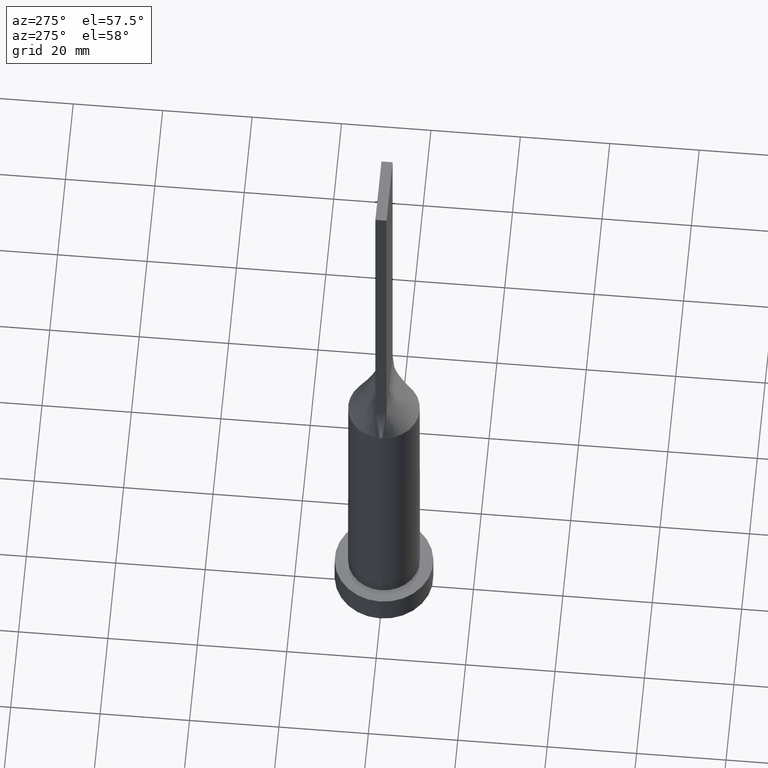
[diagram: clean part render]
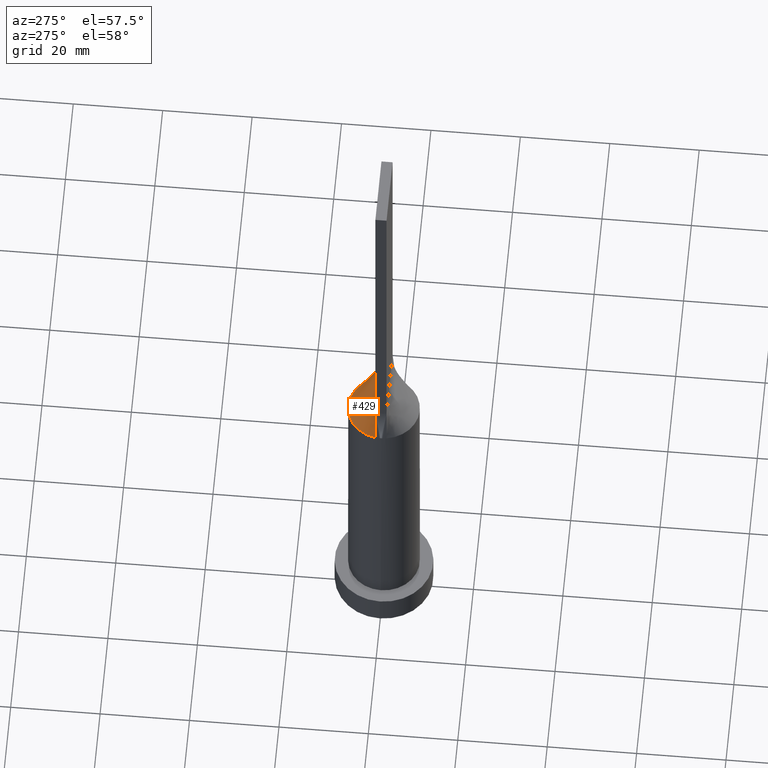
[diagram: same view with one face highlighted and labeled with its STEP entity id]
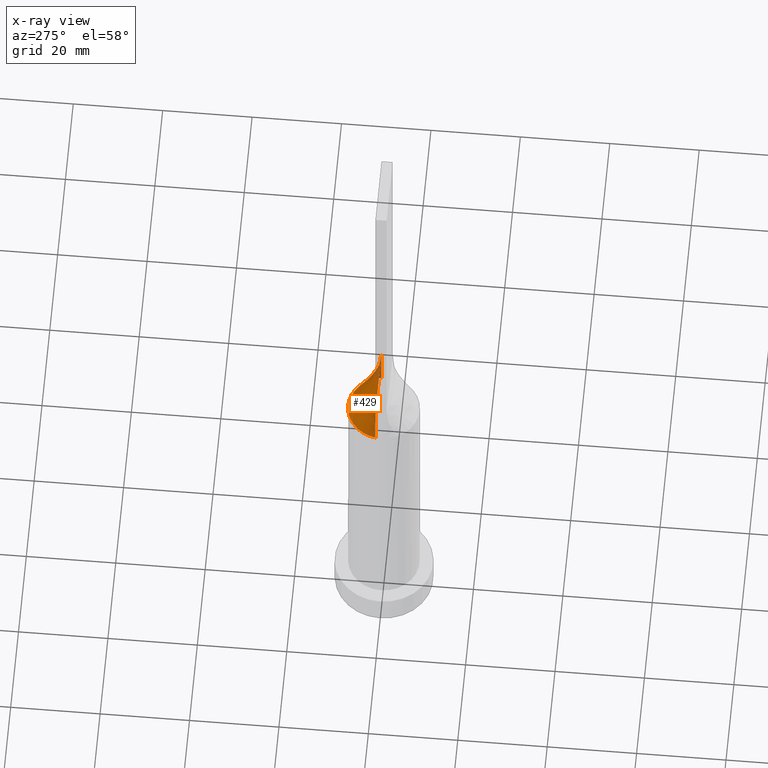
[diagram: x-ray of the same camera — body ghosted, the highlighted face saturated]
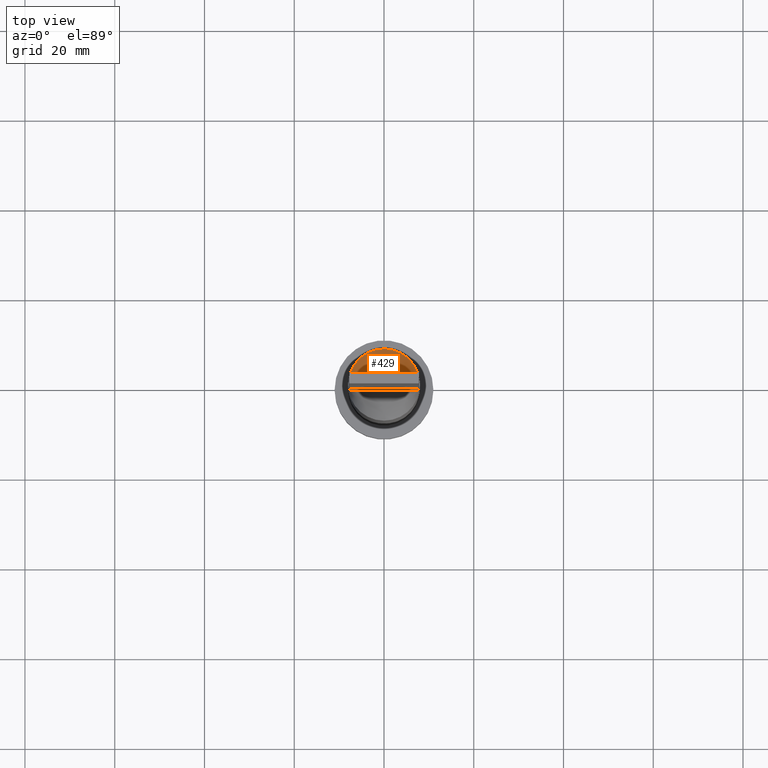
[diagram: same view with one face highlighted and labeled with its STEP entity id]
A machine part, auxiliary view. The second image highlights one B-rep face of the part: STEP entity #429.
The next image is the same camera in x-ray: the body ghosted, the highlighted face saturated — about 6% of this face is hidden behind the body in this view.
A second angle (top view) of the same face is appended — the face is thin or edge-on in the first view.
In plain terms, the highlighted face is a freeform B-spline surface patch.
Its self-contained STEP definition (entity closure, byte-faithful):
#4 = CARTESIAN_POINT ( 'NONE',  ( 0.5677556330368851434, 7.999999999999998224, 70.00000000000000000 ) ) ;
#12 = CARTESIAN_POINT ( 'NONE',  ( -1.135368687448994329, 7.938897956688654389, 70.00000000000002842 ) ) ;
#14 = CARTESIAN_POINT ( 'NONE',  ( -6.883287261198669960, 4.100742229440782260, 69.99999999999998579 ) ) ;
#17 = CARTESIAN_POINT ( 'NONE',  ( -6.100409024666552327, 5.197691498289451317, 70.00000000000000000 ) ) ;
#19 = CARTESIAN_POINT ( 'NONE',  ( 6.883287261198673512, 4.100742229440780484, 70.00000000000000000 ) ) ;
#22 = CARTESIAN_POINT ( 'NONE',  ( 4.217034177653714799, 6.817775467282659818, 70.00000000000001421 ) ) ;
#36 = ORIENTED_EDGE ( 'NONE', *, *, #291, .F. ) ;
#46 = CARTESIAN_POINT ( 'NONE',  ( -5.056714967162549534, 6.220536417275851271, 70.00000000000000000 ) ) ;
#49 = CARTESIAN_POINT ( 'NONE',  ( -1.135368687448994329, 7.938897956688654389, 70.00000000000002842 ) ) ;
#50 = ORIENTED_EDGE ( 'NONE', *, *, #436, .T. ) ;
#51 = CARTESIAN_POINT ( 'NONE',  ( -6.100409024666552327, 5.197691498289451317, 70.00000000000000000 ) ) ;
#52 = EDGE_CURVE ( 'NONE', #595, #368, #350, .T. ) ;
#54 = CARTESIAN_POINT ( 'NONE',  ( -6.458333333333333925, 1.250000000000000222, 80.00000000000001421 ) ) ;
#57 = B_SPLINE_CURVE_WITH_KNOTS ( 'NONE', 3,
 ( #477, #154, #247, #304, #19, #214, #126, #529, #592, #152, #318, #457, #272, #364, #4, #377, #12, #564, #103, #313, #317, #517, #208, #17, #411, #511, #374, #602, #607, #367 ),
 .UNSPECIFIED., .F., .F.,
 ( 4, 2, 2, 2, 2, 2, 2, 2, 2, 2, 2, 2, 2, 2, 4 ),
 ( 0.000000000000000000, 0.1250000000000000000, 0.1875000000000000000, 0.2500000000000000000, 0.3125000000000000000, 0.3750000000000000000, 0.4375000000000000000, 0.5000000000000000000, 0.5625000000000000000, 0.6250000000000000000, 0.6875000000000000000, 0.7500000000000000000, 0.8125000000000000000, 0.8750000000000000000, 1.000000000000000000 ),
 .UNSPECIFIED. ) ;
#67 = CARTESIAN_POINT ( 'NONE',  ( 7.104166666666666963, 1.250000000000000222, 79.99999999999998579 ) ) ;
#69 = CARTESIAN_POINT ( 'NONE',  ( -7.750000000000000000, 1.250000000000000222, 80.00000000000000000 ) ) ;
#83 = CARTESIAN_POINT ( 'NONE',  ( -7.750000000000000000, 1.250000000000000222, 80.00000000000000000 ) ) ;
#86 = CARTESIAN_POINT ( 'NONE',  ( 7.897939137640443974, 1.273861156091724789, 70.00000000000000000 ) ) ;
#91 = CARTESIAN_POINT ( 'NONE',  ( 6.883287261198673512, 4.100742229440780484, 70.00000000000000000 ) ) ;
#94 = B_SPLINE_SURFACE_WITH_KNOTS ( 'NONE', 3, 1, ( 
 ( #366, #560 ),
 ( #327, #67 ),
 ( #434, #476 ),
 ( #342, #195 ),
 ( #91, #566 ),
 ( #270, #431 ),
 ( #325, #115 ),
 ( #221, #423 ),
 ( #330, #336 ),
 ( #22, #621 ),
 ( #185, #385 ),
 ( #223, #524 ),
 ( #282, #531 ),
 ( #111, #209 ),
 ( #104, #314 ),
 ( #309, #507 ),
 ( #49, #258 ),
 ( #205, #409 ),
 ( #601, #274 ),
 ( #211, #175 ),
 ( #163, #269 ),
 ( #46, #563 ),
 ( #264, #461 ),
 ( #51, #124 ),
 ( #527, #611 ),
 ( #14, #262 ),
 ( #427, #370 ),
 ( #109, #54 ),
 ( #172, #225 ),
 ( #576, #69 ) ),
 .UNSPECIFIED., .F., .F., .F.,
 ( 4, 2, 2, 2, 2, 2, 2, 2, 2, 2, 2, 2, 2, 2, 4 ),
 ( 2, 2 ),
 ( 0.000000000000000000, 0.1250000000000000000, 0.1875000000000000000, 0.2500000000000000000, 0.3125000000000000000, 0.3750000000000000000, 0.4375000000000000000, 0.5000000000000000000, 0.5625000000000000000, 0.6250000000000000000, 0.6875000000000000000, 0.7500000000000000000, 0.8125000000000000000, 0.8750000000000000000, 1.000000000000000000 ),
 ( 0.000000000000000000, 1.000000000000000000 ),
 .UNSPECIFIED. ) ;
#99 = FACE_OUTER_BOUND ( 'NONE', #629, .T. ) ;
#103 = CARTESIAN_POINT ( 'NONE',  ( -2.762781956618985291, 7.527418670504290255, 70.00000000000001421 ) ) ;
#104 = CARTESIAN_POINT ( 'NONE',  ( 0.5677556330368851434, 7.999999999999998224, 70.00000000000000000 ) ) ;
#108 = ORIENTED_EDGE ( 'NONE', *, *, #177, .T. ) ;
#109 = CARTESIAN_POINT ( 'NONE',  ( -7.597511974649647115, 2.632154125590751903, 70.00000000000001421 ) ) ;
#111 = CARTESIAN_POINT ( 'NONE',  ( 1.135368687448996328, 7.938897956688654389, 70.00000000000001421 ) ) ;
#115 = CARTESIAN_POINT ( 'NONE',  ( 4.197916666666667851, 1.250000000000000222, 80.00000000000001421 ) ) ;
#124 = CARTESIAN_POINT ( 'NONE',  ( -4.197916666666666075, 1.250000000000000222, 80.00000000000001421 ) ) ;
#126 = CARTESIAN_POINT ( 'NONE',  ( 6.100409024666552327, 5.197691498289451317, 70.00000000000000000 ) ) ;
#152 = CARTESIAN_POINT ( 'NONE',  ( 4.217034177653714799, 6.817775467282659818, 70.00000000000001421 ) ) ;
#153 = CARTESIAN_POINT ( 'NONE',  ( -7.750000000000000000, 1.250000000000000222, 80.00000000000000000 ) ) ;
#154 = CARTESIAN_POINT ( 'NONE',  ( 7.793128424795161990, 1.923622864214272088, 70.00000000000000000 ) ) ;
#163 = CARTESIAN_POINT ( 'NONE',  ( -4.217034177653714799, 6.817775467282660706, 70.00000000000001421 ) ) ;
#172 = CARTESIAN_POINT ( 'NONE',  ( -7.793128424795161102, 1.923622864214273198, 70.00000000000000000 ) ) ;
#175 = CARTESIAN_POINT ( 'NONE',  ( -2.260416666666665630, 1.250000000000000222, 79.99999999999998579 ) ) ;
#177 = EDGE_CURVE ( 'NONE', #562, #368, #545, .T. ) ;
#185 = CARTESIAN_POINT ( 'NONE',  ( 3.754841939107309567, 7.084924699190306541, 70.00000000000001421 ) ) ;
#195 = CARTESIAN_POINT ( 'NONE',  ( 5.489583333333333037, 1.250000000000000222, 79.99999999999998579 ) ) ;
#205 = CARTESIAN_POINT ( 'NONE',  ( -2.232993174580875539, 7.702525839322460044, 70.00000000000001421 ) ) ;
#208 = CARTESIAN_POINT ( 'NONE',  ( -5.434261125067506804, 5.890653037160105576, 70.00000000000001421 ) ) ;
#209 = CARTESIAN_POINT ( 'NONE',  ( 0.6458333333333345916, 1.250000000000000222, 79.99999999999998579 ) ) ;
#211 = CARTESIAN_POINT ( 'NONE',  ( -3.754841939107308235, 7.084924699190308317, 70.00000000000000000 ) ) ;
#214 = CARTESIAN_POINT ( 'NONE',  ( 6.389139692789920666, 4.834731051311459638, 70.00000000000001421 ) ) ;
#221 = CARTESIAN_POINT ( 'NONE',  ( 5.434261125067508580, 5.890653037160103800, 70.00000000000001421 ) ) ;
#223 = CARTESIAN_POINT ( 'NONE',  ( 2.762781956618984847, 7.527418670504289366, 70.00000000000000000 ) ) ;
#225 = CARTESIAN_POINT ( 'NONE',  ( -7.104166666666667851, 1.250000000000000222, 80.00000000000001421 ) ) ;
#247 = CARTESIAN_POINT ( 'NONE',  ( 7.597511974649646227, 2.632154125590748350, 69.99999999999998579 ) ) ;
#258 = CARTESIAN_POINT ( 'NONE',  ( -0.6458333333333320381, 1.250000000000000222, 79.99999999999998579 ) ) ;
#262 = CARTESIAN_POINT ( 'NONE',  ( -5.166666666666666963, 1.250000000000000222, 80.00000000000001421 ) ) ;
#263 = VERTEX_POINT ( 'NONE', #86 ) ;
#264 = CARTESIAN_POINT ( 'NONE',  ( -5.434261125067506804, 5.890653037160105576, 70.00000000000001421 ) ) ;
#269 = CARTESIAN_POINT ( 'NONE',  ( -2.583333333333332593, 1.250000000000000222, 80.00000000000000000 ) ) ;
#270 = CARTESIAN_POINT ( 'NONE',  ( 6.389139692789920666, 4.834731051311459638, 70.00000000000001421 ) ) ;
#272 = CARTESIAN_POINT ( 'NONE',  ( 2.232993174580878204, 7.702525839322459156, 70.00000000000002842 ) ) ;
#274 = CARTESIAN_POINT ( 'NONE',  ( -1.614583333333331927, 1.250000000000000222, 79.99999999999998579 ) ) ;
#276 = ORIENTED_EDGE ( 'NONE', *, *, #52, .F. ) ;
#282 = CARTESIAN_POINT ( 'NONE',  ( 2.232993174580878204, 7.702525839322459156, 70.00000000000002842 ) ) ;
#284 = DIRECTION ( 'NONE',  ( -1.000000000000000000, -0.000000000000000000, -0.000000000000000000 ) ) ;
#291 = EDGE_CURVE ( 'NONE', #263, #595, #359, .T. ) ;
#304 = CARTESIAN_POINT ( 'NONE',  ( 7.088837466865212988, 3.729743859143727303, 70.00000000000002842 ) ) ;
#309 = CARTESIAN_POINT ( 'NONE',  ( -0.5677556330368852544, 7.999999999999998224, 69.99999999999998579 ) ) ;
#313 = CARTESIAN_POINT ( 'NONE',  ( -3.754841939107308235, 7.084924699190308317, 70.00000000000000000 ) ) ;
#314 = CARTESIAN_POINT ( 'NONE',  ( 0.3229166666666679064, 1.250000000000000444, 79.99999999999998579 ) ) ;
#317 = CARTESIAN_POINT ( 'NONE',  ( -4.217034177653714799, 6.817775467282660706, 70.00000000000001421 ) ) ;
#318 = CARTESIAN_POINT ( 'NONE',  ( 3.754841939107309567, 7.084924699190306541, 70.00000000000001421 ) ) ;
#325 = CARTESIAN_POINT ( 'NONE',  ( 6.100409024666552327, 5.197691498289451317, 70.00000000000000000 ) ) ;
#327 = CARTESIAN_POINT ( 'NONE',  ( 7.793128424795161990, 1.923622864214272088, 70.00000000000000000 ) ) ;
#330 = CARTESIAN_POINT ( 'NONE',  ( 5.056714967162550423, 6.220536417275850383, 70.00000000000001421 ) ) ;
#336 = CARTESIAN_POINT ( 'NONE',  ( 3.229166666666667407, 1.250000000000000222, 80.00000000000001421 ) ) ;
#342 = CARTESIAN_POINT ( 'NONE',  ( 7.088837466865212988, 3.729743859143727303, 70.00000000000002842 ) ) ;
#350 = LINE ( 'NONE', #83, #521 ) ;
#359 = LINE ( 'NONE', #599, #451 ) ;
#364 = CARTESIAN_POINT ( 'NONE',  ( 1.135368687448996328, 7.938897956688654389, 70.00000000000001421 ) ) ;
#366 = CARTESIAN_POINT ( 'NONE',  ( 7.897928965701177084, 1.273859510596963451, 70.00000000000000000 ) ) ;
#367 = CARTESIAN_POINT ( 'NONE',  ( -7.897950825069725234, 1.273863048877633020, 70.00000000000000000 ) ) ;
#368 = VERTEX_POINT ( 'NONE', #153 ) ;
#370 = CARTESIAN_POINT ( 'NONE',  ( -5.489583333333333925, 1.250000000000000222, 80.00000000000001421 ) ) ;
#374 = CARTESIAN_POINT ( 'NONE',  ( -7.088837466865208548, 3.729743859143727747, 70.00000000000001421 ) ) ;
#377 = CARTESIAN_POINT ( 'NONE',  ( -0.5677556330368852544, 7.999999999999998224, 69.99999999999998579 ) ) ;
#385 = CARTESIAN_POINT ( 'NONE',  ( 2.260416666666668295, 1.250000000000000222, 80.00000000000000000 ) ) ;
#409 = CARTESIAN_POINT ( 'NONE',  ( -1.291666666666665408, 1.250000000000000222, 79.99999999999998579 ) ) ;
#411 = CARTESIAN_POINT ( 'NONE',  ( -6.389139692789916225, 4.834731051311460526, 70.00000000000001421 ) ) ;
#423 = CARTESIAN_POINT ( 'NONE',  ( 3.552083333333334370, 1.250000000000000222, 80.00000000000001421 ) ) ;
#427 = CARTESIAN_POINT ( 'NONE',  ( -7.088837466865208548, 3.729743859143727747, 70.00000000000001421 ) ) ;
#429 = ADVANCED_FACE ( 'NONE', ( #99 ), #94, .T. ) ;
#431 = CARTESIAN_POINT ( 'NONE',  ( 4.520833333333333925, 1.250000000000000222, 80.00000000000001421 ) ) ;
#434 = CARTESIAN_POINT ( 'NONE',  ( 7.597511974649646227, 2.632154125590748350, 69.99999999999998579 ) ) ;
#436 = EDGE_CURVE ( 'NONE', #263, #562, #57, .T. ) ;
#451 = VECTOR ( 'NONE', #552, 1000.000000000000227 ) ;
#457 = CARTESIAN_POINT ( 'NONE',  ( 2.762781956618984847, 7.527418670504289366, 70.00000000000000000 ) ) ;
#458 = CARTESIAN_POINT ( 'NONE',  ( -7.897950825069725234, 1.273863048877633020, 70.00000000000000000 ) ) ;
#461 = CARTESIAN_POINT ( 'NONE',  ( -3.552083333333333037, 1.250000000000000222, 80.00000000000001421 ) ) ;
#476 = CARTESIAN_POINT ( 'NONE',  ( 6.458333333333333037, 1.250000000000000222, 79.99999999999998579 ) ) ;
#477 = CARTESIAN_POINT ( 'NONE',  ( 7.897939137640443974, 1.273861156091724789, 70.00000000000000000 ) ) ;
#491 = CARTESIAN_POINT ( 'NONE',  ( -7.823964482850588986, 1.261929755298481393, 75.00000000000001421 ) ) ;
#507 = CARTESIAN_POINT ( 'NONE',  ( -0.3229166666666653529, 1.250000000000000444, 79.99999999999998579 ) ) ;
#511 = CARTESIAN_POINT ( 'NONE',  ( -6.883287261198669960, 4.100742229440782260, 69.99999999999998579 ) ) ;
#516 = DIRECTION ( 'NONE',  ( 0.01479123618026851987, -0.002385683254881837845, 0.9998877576246579801 ) ) ;
#517 = CARTESIAN_POINT ( 'NONE',  ( -5.056714967162549534, 6.220536417275851271, 70.00000000000000000 ) ) ;
#521 = VECTOR ( 'NONE', #284, 1000.000000000000000 ) ;
#524 = CARTESIAN_POINT ( 'NONE',  ( 1.614583333333335036, 1.250000000000000222, 79.99999999999998579 ) ) ;
#527 = CARTESIAN_POINT ( 'NONE',  ( -6.389139692789916225, 4.834731051311460526, 70.00000000000001421 ) ) ;
#529 = CARTESIAN_POINT ( 'NONE',  ( 5.434261125067508580, 5.890653037160103800, 70.00000000000001421 ) ) ;
#531 = CARTESIAN_POINT ( 'NONE',  ( 1.291666666666668073, 1.250000000000000222, 79.99999999999998579 ) ) ;
#545 = LINE ( 'NONE', #491, #573 ) ;
#552 = DIRECTION ( 'NONE',  ( -0.01479123618026851987, -0.002385683254881881647, 0.9998877576246579801 ) ) ;
#560 = CARTESIAN_POINT ( 'NONE',  ( 7.750000000000000000, 1.250000000000000222, 80.00000000000000000 ) ) ;
#562 = VERTEX_POINT ( 'NONE', #458 ) ;
#563 = CARTESIAN_POINT ( 'NONE',  ( -3.229166666666665630, 1.250000000000000222, 80.00000000000001421 ) ) ;
#564 = CARTESIAN_POINT ( 'NONE',  ( -2.232993174580875539, 7.702525839322460044, 70.00000000000001421 ) ) ;
#566 = CARTESIAN_POINT ( 'NONE',  ( 5.166666666666666963, 1.250000000000000222, 80.00000000000000000 ) ) ;
#573 = VECTOR ( 'NONE', #516, 1000.000000000000227 ) ;
#576 = CARTESIAN_POINT ( 'NONE',  ( -7.897928965701177084, 1.273859510596962563, 70.00000000000000000 ) ) ;
#592 = CARTESIAN_POINT ( 'NONE',  ( 5.056714967162550423, 6.220536417275850383, 70.00000000000001421 ) ) ;
#595 = VERTEX_POINT ( 'NONE', #618 ) ;
#599 = CARTESIAN_POINT ( 'NONE',  ( 7.823964482850588986, 1.261929755298481393, 75.00000000000001421 ) ) ;
#601 = CARTESIAN_POINT ( 'NONE',  ( -2.762781956618985291, 7.527418670504290255, 70.00000000000001421 ) ) ;
#602 = CARTESIAN_POINT ( 'NONE',  ( -7.597511974649647115, 2.632154125590751903, 70.00000000000001421 ) ) ;
#607 = CARTESIAN_POINT ( 'NONE',  ( -7.793128424795161102, 1.923622864214273198, 70.00000000000000000 ) ) ;
#611 = CARTESIAN_POINT ( 'NONE',  ( -4.520833333333332149, 1.250000000000000222, 80.00000000000001421 ) ) ;
#618 = CARTESIAN_POINT ( 'NONE',  ( 7.750000000000000000, 1.250000000000000222, 80.00000000000000000 ) ) ;
#621 = CARTESIAN_POINT ( 'NONE',  ( 2.583333333333334814, 1.250000000000000222, 80.00000000000000000 ) ) ;
#629 = EDGE_LOOP ( 'NONE', ( #50, #108, #276, #36 ) ) ;